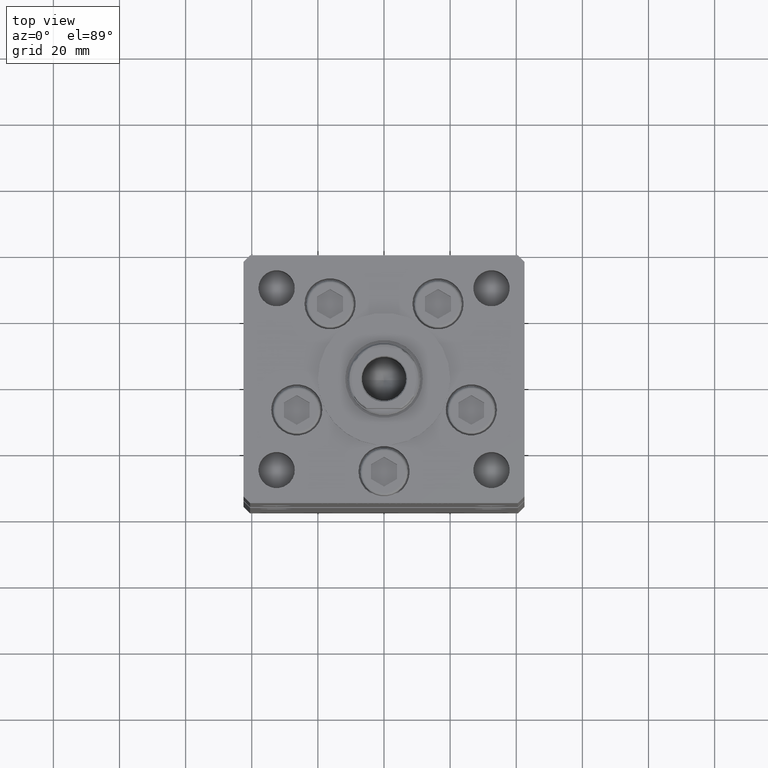
[diagram: clean part render]
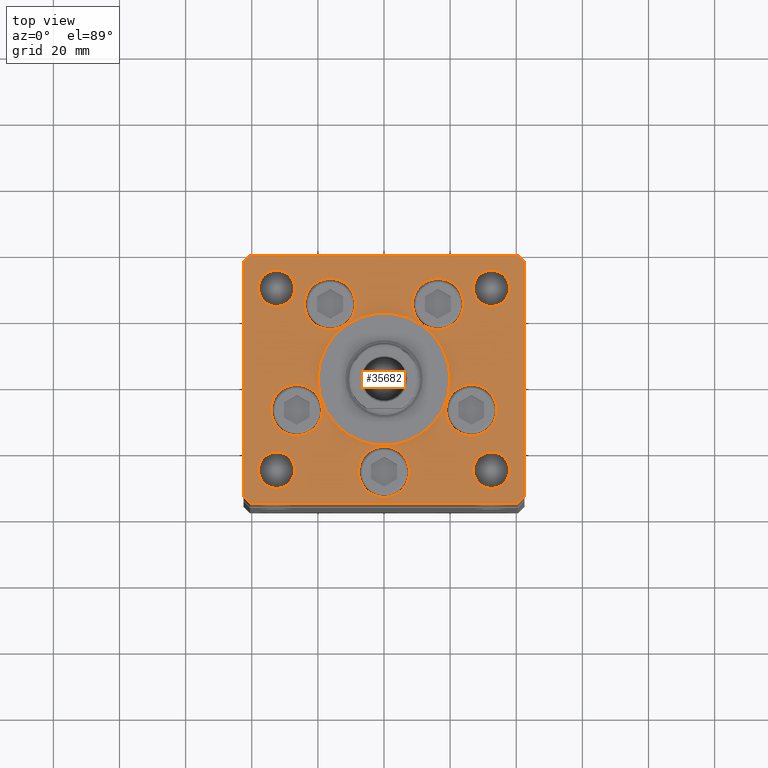
[diagram: same view with one face highlighted and labeled with its STEP entity id]
A machine part, top view. The second image highlights one B-rep face of the part: STEP entity #35682.
In plain terms, the highlighted planar face has unit normal (0, 0, 1).
Its self-contained STEP definition (entity closure, byte-faithful):
#1343 = CARTESIAN_POINT ( 'NONE',  ( -38.00000000000000000, -27.50000000000000355, 0.000000000000000000 ) ) ;
#1597 = CARTESIAN_POINT ( 'NONE',  ( 42.50000000000001421, 35.50000000000002132, 0.000000000000000000 ) ) ;
#1901 = FACE_BOUND ( 'NONE', #13152, .T. ) ;
#2140 = EDGE_CURVE ( 'NONE', #8667, #50473, #35944, .T. ) ;
#2159 = FACE_BOUND ( 'NONE', #14799, .T. ) ;
#2946 = VERTEX_POINT ( 'NONE', #18551 ) ;
#2965 = CARTESIAN_POINT ( 'NONE',  ( 32.50000000000000000, 27.49999999999999645, 0.000000000000000000 ) ) ;
#3022 = ORIENTED_EDGE ( 'NONE', *, *, #33646, .F. ) ;
#3031 = CIRCLE ( 'NONE', #21913, 5.499999999999998224 ) ;
#3111 = DIRECTION ( 'NONE',  ( 1.000000000000000000, 0.000000000000000000, 0.000000000000000000 ) ) ;
#3148 = DIRECTION ( 'NONE',  ( -1.000000000000000000, 0.000000000000000000, 0.000000000000000000 ) ) ;
#3188 = EDGE_CURVE ( 'NONE', #50121, #42399, #32314, .T. ) ;
#3564 = DIRECTION ( 'NONE',  ( -1.000000000000000000, 0.000000000000000000, 0.000000000000000000 ) ) ;
#3599 = ORIENTED_EDGE ( 'NONE', *, *, #17933, .T. ) ;
#3648 = EDGE_CURVE ( 'NONE', #4638, #20442, #47733, .T. ) ;
#4004 = VERTEX_POINT ( 'NONE', #7210 ) ;
#4372 = DIRECTION ( 'NONE',  ( 1.000000000000000000, 0.000000000000000000, 0.000000000000000000 ) ) ;
#4407 = DIRECTION ( 'NONE',  ( 1.000000000000000000, 1.370645709413773283E-15, 0.000000000000000000 ) ) ;
#4638 = VERTEX_POINT ( 'NONE', #24545 ) ;
#5094 = DIRECTION ( 'NONE',  ( 0.000000000000000000, 0.000000000000000000, 1.000000000000000000 ) ) ;
#5350 = VECTOR ( 'NONE', #5554, 1000.000000000000000 ) ;
#5554 = DIRECTION ( 'NONE',  ( -1.000000000000000000, -4.283267841918041508E-16, 0.000000000000000000 ) ) ;
#5619 = DIRECTION ( 'NONE',  ( -0.7071067811865524577, 0.7071067811865426878, 0.000000000000000000 ) ) ;
#5828 = AXIS2_PLACEMENT_3D ( 'NONE', #29367, #50270, #34175 ) ;
#5922 = ORIENTED_EDGE ( 'NONE', *, *, #28364, .T. ) ;
#6088 = CARTESIAN_POINT ( 'NONE',  ( 40.50000000000000711, 37.50000000000000711, 0.000000000000000000 ) ) ;
#6465 = DIRECTION ( 'NONE',  ( 1.000000000000000000, 0.000000000000000000, 0.000000000000000000 ) ) ;
#6713 = AXIS2_PLACEMENT_3D ( 'NONE', #11628, #36337, #3564 ) ;
#6719 = CIRCLE ( 'NONE', #35879, 7.750000000000000000 ) ;
#6830 = CIRCLE ( 'NONE', #6713, 5.499999999999998224 ) ;
#7084 = DIRECTION ( 'NONE',  ( 0.000000000000000000, 0.000000000000000000, 1.000000000000000000 ) ) ;
#7127 = ORIENTED_EDGE ( 'NONE', *, *, #45751, .T. ) ;
#7210 = CARTESIAN_POINT ( 'NONE',  ( -40.50000000000000711, -37.50000000000003553, 0.000000000000000000 ) ) ;
#7219 = CIRCLE ( 'NONE', #35526, 5.499999999999998224 ) ;
#7682 = AXIS2_PLACEMENT_3D ( 'NONE', #26884, #50519, #43251 ) ;
#8264 = AXIS2_PLACEMENT_3D ( 'NONE', #18254, #22552, #14218 ) ;
#8389 = VECTOR ( 'NONE', #26645, 1000.000000000000000 ) ;
#8667 = VERTEX_POINT ( 'NONE', #42261 ) ;
#8799 = DIRECTION ( 'NONE',  ( 0.7071067811865474617, 0.7071067811865474617, 0.000000000000000000 ) ) ;
#8812 = EDGE_CURVE ( 'NONE', #41532, #35198, #39349, .T. ) ;
#8957 = DIRECTION ( 'NONE',  ( 1.000000000000000000, 0.000000000000000000, 0.000000000000000000 ) ) ;
#9152 = AXIS2_PLACEMENT_3D ( 'NONE', #26432, #27233, #51376 ) ;
#9259 = EDGE_LOOP ( 'NONE', ( #27179, #47994, #52409, #25388, #5922, #3599, #7127, #36274 ) ) ;
#9460 = CARTESIAN_POINT ( 'NONE',  ( 0.000000000000000000, 0.000000000000000000, 0.000000000000000000 ) ) ;
#10094 = EDGE_LOOP ( 'NONE', ( #33710, #28941 ) ) ;
#10648 = DIRECTION ( 'NONE',  ( 0.000000000000000000, 0.000000000000000000, 1.000000000000000000 ) ) ;
#10863 = CIRCLE ( 'NONE', #9152, 7.750000000000000000 ) ;
#10956 = DIRECTION ( 'NONE',  ( -0.000000000000000000, -0.000000000000000000, -1.000000000000000000 ) ) ;
#11159 = EDGE_LOOP ( 'NONE', ( #23056, #49198 ) ) ;
#11374 = AXIS2_PLACEMENT_3D ( 'NONE', #23239, #48182, #32360 ) ;
#11433 = EDGE_CURVE ( 'NONE', #51940, #49529, #14602, .T. ) ;
#11438 = ORIENTED_EDGE ( 'NONE', *, *, #18230, .F. ) ;
#11628 = CARTESIAN_POINT ( 'NONE',  ( 32.50000000000000000, -27.50000000000000355, 0.000000000000000000 ) ) ;
#11714 = CARTESIAN_POINT ( 'NONE',  ( -16.32291334290544071, 22.74999999999999289, 0.000000000000000000 ) ) ;
#11767 = VERTEX_POINT ( 'NONE', #6088 ) ;
#11983 = AXIS2_PLACEMENT_3D ( 'NONE', #52628, #19093, #31983 ) ;
#12486 = VERTEX_POINT ( 'NONE', #47303 ) ;
#12725 = DIRECTION ( 'NONE',  ( 0.000000000000000000, 0.000000000000000000, 1.000000000000000000 ) ) ;
#13152 = EDGE_LOOP ( 'NONE', ( #39221, #52493 ) ) ;
#13287 = VECTOR ( 'NONE', #5619, 1000.000000000000000 ) ;
#13483 = VERTEX_POINT ( 'NONE', #39208 ) ;
#13544 = VERTEX_POINT ( 'NONE', #19334 ) ;
#13749 = DIRECTION ( 'NONE',  ( 1.000000000000000000, 0.000000000000000000, 0.000000000000000000 ) ) ;
#13752 = CARTESIAN_POINT ( 'NONE',  ( 0.000000000000000000, -28.00000000000000000, 0.000000000000000000 ) ) ;
#13825 = CARTESIAN_POINT ( 'NONE',  ( -27.00000000000000355, -27.50000000000000355, 0.000000000000000000 ) ) ;
#14218 = DIRECTION ( 'NONE',  ( -1.000000000000000000, 0.000000000000000000, 0.000000000000000000 ) ) ;
#14259 = FACE_BOUND ( 'NONE', #10094, .T. ) ;
#14312 = AXIS2_PLACEMENT_3D ( 'NONE', #25515, #5094, #33314 ) ;
#14406 = ORIENTED_EDGE ( 'NONE', *, *, #8812, .F. ) ;
#14602 = CIRCLE ( 'NONE', #45499, 5.499999999999998224 ) ;
#14799 = EDGE_LOOP ( 'NONE', ( #3022, #27879 ) ) ;
#15152 = CARTESIAN_POINT ( 'NONE',  ( 16.32291334290544071, 22.74999999999999289, 0.000000000000000000 ) ) ;
#15310 = DIRECTION ( 'NONE',  ( 1.000000000000000000, 0.000000000000000000, 0.000000000000000000 ) ) ;
#15522 = DIRECTION ( 'NONE',  ( 9.773090005503134168E-17, -1.000000000000000000, 0.000000000000000000 ) ) ;
#15998 = ORIENTED_EDGE ( 'NONE', *, *, #38241, .F. ) ;
#16150 = CARTESIAN_POINT ( 'NONE',  ( 40.50000000000000711, 37.50000000000000711, 0.000000000000000000 ) ) ;
#16293 = DIRECTION ( 'NONE',  ( 0.000000000000000000, 0.000000000000000000, 1.000000000000000000 ) ) ;
#16792 = EDGE_CURVE ( 'NONE', #29213, #25379, #43110, .T. ) ;
#16813 = CARTESIAN_POINT ( 'NONE',  ( -16.32291334290544071, 22.74999999999999289, 0.000000000000000000 ) ) ;
#17812 = AXIS2_PLACEMENT_3D ( 'NONE', #9460, #42211, #13749 ) ;
#17933 = EDGE_CURVE ( 'NONE', #11767, #13544, #24748, .T. ) ;
#18230 = EDGE_CURVE ( 'NONE', #42399, #50121, #29455, .T. ) ;
#18254 = CARTESIAN_POINT ( 'NONE',  ( 32.50000000000000000, -27.50000000000000355, 0.000000000000000000 ) ) ;
#18312 = LINE ( 'NONE', #30680, #8389 ) ;
#18350 = ORIENTED_EDGE ( 'NONE', *, *, #11433, .F. ) ;
#18551 = CARTESIAN_POINT ( 'NONE',  ( -27.00000000000000355, 27.50000000000000711, 0.000000000000000000 ) ) ;
#18568 = VECTOR ( 'NONE', #15522, 1000.000000000000000 ) ;
#18984 = DIRECTION ( 'NONE',  ( -1.000000000000000000, 0.000000000000000000, 0.000000000000000000 ) ) ;
#19031 = EDGE_LOOP ( 'NONE', ( #15998, #45178 ) ) ;
#19093 = DIRECTION ( 'NONE',  ( 0.000000000000000000, 0.000000000000000000, 1.000000000000000000 ) ) ;
#19303 = CIRCLE ( 'NONE', #52755, 7.750000000000000000 ) ;
#19334 = CARTESIAN_POINT ( 'NONE',  ( -40.50000000000000000, 37.49999999999997158, 0.000000000000000000 ) ) ;
#19343 = AXIS2_PLACEMENT_3D ( 'NONE', #28103, #10648, #3111 ) ;
#19638 = DIRECTION ( 'NONE',  ( 1.000000000000000000, 0.000000000000000000, 0.000000000000000000 ) ) ;
#20016 = CARTESIAN_POINT ( 'NONE',  ( -18.64865316429777664, -9.333333333333330373, 0.000000000000000000 ) ) ;
#20442 = VERTEX_POINT ( 'NONE', #39399 ) ;
#20802 = CARTESIAN_POINT ( 'NONE',  ( -40.50000000000000711, -37.50000000000003553, 0.000000000000000000 ) ) ;
#20857 = DIRECTION ( 'NONE',  ( 1.000000000000000000, 0.000000000000000000, 0.000000000000000000 ) ) ;
#21042 = CIRCLE ( 'NONE', #34747, 7.750000000000000000 ) ;
#21913 = AXIS2_PLACEMENT_3D ( 'NONE', #2965, #40035, #19638 ) ;
#22025 = LINE ( 'NONE', #1597, #13287 ) ;
#22097 = EDGE_CURVE ( 'NONE', #13483, #2946, #34632, .T. ) ;
#22334 = FACE_BOUND ( 'NONE', #19031, .T. ) ;
#22389 = EDGE_CURVE ( 'NONE', #2946, #13483, #7219, .T. ) ;
#22552 = DIRECTION ( 'NONE',  ( -0.000000000000000000, -0.000000000000000000, -1.000000000000000000 ) ) ;
#22671 = CIRCLE ( 'NONE', #26084, 7.750000000000000000 ) ;
#22758 = CARTESIAN_POINT ( 'NONE',  ( 42.50000000000000711, -35.49999999999992895, 0.000000000000000000 ) ) ;
#23000 = VERTEX_POINT ( 'NONE', #29342 ) ;
#23056 = ORIENTED_EDGE ( 'NONE', *, *, #30057, .F. ) ;
#23194 = EDGE_CURVE ( 'NONE', #38711, #50458, #29218, .T. ) ;
#23239 = CARTESIAN_POINT ( 'NONE',  ( -32.50000000000000000, -27.50000000000000355, 0.000000000000000000 ) ) ;
#24545 = CARTESIAN_POINT ( 'NONE',  ( -7.750000000000000000, -28.00000000000000000, 0.000000000000000000 ) ) ;
#24748 = LINE ( 'NONE', #16150, #5350 ) ;
#25268 = EDGE_CURVE ( 'NONE', #12486, #52551, #19303, .T. ) ;
#25379 = VERTEX_POINT ( 'NONE', #13825 ) ;
#25388 = ORIENTED_EDGE ( 'NONE', *, *, #35615, .T. ) ;
#25515 = CARTESIAN_POINT ( 'NONE',  ( 16.32291334290544071, 22.74999999999999289, 0.000000000000000000 ) ) ;
#25613 = CARTESIAN_POINT ( 'NONE',  ( 26.39865316429777664, -9.333333333333330373, 0.000000000000000000 ) ) ;
#25650 = LINE ( 'NONE', #50844, #32264 ) ;
#25820 = VERTEX_POINT ( 'NONE', #28240 ) ;
#26084 = AXIS2_PLACEMENT_3D ( 'NONE', #25613, #12725, #8957 ) ;
#26432 = CARTESIAN_POINT ( 'NONE',  ( -26.39865316429777664, -9.333333333333330373, 0.000000000000000000 ) ) ;
#26457 = EDGE_CURVE ( 'NONE', #25820, #23000, #22671, .T. ) ;
#26645 = DIRECTION ( 'NONE',  ( 9.773090005503145261E-17, 1.000000000000000000, 0.000000000000000000 ) ) ;
#26884 = CARTESIAN_POINT ( 'NONE',  ( 26.39865316429777664, -9.333333333333330373, 0.000000000000000000 ) ) ;
#26943 = ORIENTED_EDGE ( 'NONE', *, *, #51839, .F. ) ;
#27179 = ORIENTED_EDGE ( 'NONE', *, *, #44783, .T. ) ;
#27233 = DIRECTION ( 'NONE',  ( 0.000000000000000000, 0.000000000000000000, 1.000000000000000000 ) ) ;
#27743 = CARTESIAN_POINT ( 'NONE',  ( 0.000000000000000000, -6.938893903907228378E-15, 0.000000000000000000 ) ) ;
#27879 = ORIENTED_EDGE ( 'NONE', *, *, #43548, .F. ) ;
#27887 = VERTEX_POINT ( 'NONE', #41180 ) ;
#28095 = AXIS2_PLACEMENT_3D ( 'NONE', #28286, #28554, #4372 ) ;
#28103 = CARTESIAN_POINT ( 'NONE',  ( -26.39865316429777664, -9.333333333333330373, 0.000000000000000000 ) ) ;
#28240 = CARTESIAN_POINT ( 'NONE',  ( 18.64865316429777664, -9.333333333333328596, 0.000000000000000000 ) ) ;
#28286 = CARTESIAN_POINT ( 'NONE',  ( 0.000000000000000000, -28.00000000000000000, 0.000000000000000000 ) ) ;
#28364 = EDGE_CURVE ( 'NONE', #48745, #11767, #22025, .T. ) ;
#28461 = EDGE_LOOP ( 'NONE', ( #44374, #39571 ) ) ;
#28554 = DIRECTION ( 'NONE',  ( 0.000000000000000000, 0.000000000000000000, 1.000000000000000000 ) ) ;
#28714 = EDGE_LOOP ( 'NONE', ( #35606, #48092 ) ) ;
#28868 = CIRCLE ( 'NONE', #8264, 5.499999999999998224 ) ;
#28941 = ORIENTED_EDGE ( 'NONE', *, *, #41931, .T. ) ;
#29059 = VECTOR ( 'NONE', #4407, 1000.000000000000000 ) ;
#29100 = CARTESIAN_POINT ( 'NONE',  ( 27.00000000000000355, 27.49999999999999645, 0.000000000000000000 ) ) ;
#29213 = VERTEX_POINT ( 'NONE', #1343 ) ;
#29218 = LINE ( 'NONE', #45576, #34672 ) ;
#29342 = CARTESIAN_POINT ( 'NONE',  ( 34.14865316429777664, -9.333333333333330373, 0.000000000000000000 ) ) ;
#29367 = CARTESIAN_POINT ( 'NONE',  ( 0.000000000000000000, -6.938893903907228378E-15, 0.000000000000000000 ) ) ;
#29455 = CIRCLE ( 'NONE', #36297, 7.750000000000000000 ) ;
#30057 = EDGE_CURVE ( 'NONE', #20442, #4638, #21042, .T. ) ;
#30177 = EDGE_CURVE ( 'NONE', #49529, #51940, #3031, .T. ) ;
#30393 = FACE_BOUND ( 'NONE', #31846, .T. ) ;
#30622 = CARTESIAN_POINT ( 'NONE',  ( 8.572913342905442491, 22.74999999999999289, 0.000000000000000000 ) ) ;
#30680 = CARTESIAN_POINT ( 'NONE',  ( 42.50000000000000711, -35.49999999999992895, 0.000000000000000000 ) ) ;
#30858 = CIRCLE ( 'NONE', #7682, 7.750000000000000000 ) ;
#31191 = FACE_BOUND ( 'NONE', #28714, .T. ) ;
#31426 = CARTESIAN_POINT ( 'NONE',  ( 32.50000000000000000, 27.49999999999999645, 0.000000000000000000 ) ) ;
#31846 = EDGE_LOOP ( 'NONE', ( #46660, #18350 ) ) ;
#31983 = DIRECTION ( 'NONE',  ( 1.000000000000000000, 0.000000000000000000, 0.000000000000000000 ) ) ;
#32106 = CARTESIAN_POINT ( 'NONE',  ( -20.00000000000000000, -6.938893903907228378E-15, 0.000000000000000000 ) ) ;
#32264 = VECTOR ( 'NONE', #38509, 1000.000000000000000 ) ;
#32314 = CIRCLE ( 'NONE', #14312, 7.750000000000000000 ) ;
#32360 = DIRECTION ( 'NONE',  ( 1.000000000000000000, 0.000000000000000000, 0.000000000000000000 ) ) ;
#32606 = DIRECTION ( 'NONE',  ( 1.000000000000000000, 0.000000000000000000, 0.000000000000000000 ) ) ;
#32622 = LINE ( 'NONE', #20802, #29059 ) ;
#32668 = DIRECTION ( 'NONE',  ( 0.000000000000000000, 0.000000000000000000, 1.000000000000000000 ) ) ;
#32679 = EDGE_CURVE ( 'NONE', #50131, #42134, #28868, .T. ) ;
#33046 = CARTESIAN_POINT ( 'NONE',  ( 24.07291334290544071, 22.74999999999999289, 0.000000000000000000 ) ) ;
#33314 = DIRECTION ( 'NONE',  ( 1.000000000000000000, 0.000000000000000000, 0.000000000000000000 ) ) ;
#33575 = DIRECTION ( 'NONE',  ( 0.000000000000000000, 0.000000000000000000, 1.000000000000000000 ) ) ;
#33646 = EDGE_CURVE ( 'NONE', #44957, #27887, #10863, .T. ) ;
#33710 = ORIENTED_EDGE ( 'NONE', *, *, #32679, .T. ) ;
#34017 = CARTESIAN_POINT ( 'NONE',  ( -42.50000000000000000, -35.50000000000004263, 0.000000000000000000 ) ) ;
#34163 = FACE_BOUND ( 'NONE', #38373, .T. ) ;
#34175 = DIRECTION ( 'NONE',  ( 1.000000000000000000, 0.000000000000000000, 0.000000000000000000 ) ) ;
#34632 = CIRCLE ( 'NONE', #40664, 5.499999999999998224 ) ;
#34672 = VECTOR ( 'NONE', #8799, 1000.000000000000114 ) ;
#34747 = AXIS2_PLACEMENT_3D ( 'NONE', #13752, #38709, #6465 ) ;
#34770 = CARTESIAN_POINT ( 'NONE',  ( -8.572913342905440715, 22.74999999999999289, 0.000000000000000000 ) ) ;
#35135 = CIRCLE ( 'NONE', #11983, 5.499999999999998224 ) ;
#35198 = VERTEX_POINT ( 'NONE', #45062 ) ;
#35211 = PLANE ( 'NONE',  #17812 ) ;
#35526 = AXIS2_PLACEMENT_3D ( 'NONE', #48521, #10956, #3148 ) ;
#35606 = ORIENTED_EDGE ( 'NONE', *, *, #42216, .F. ) ;
#35615 = EDGE_CURVE ( 'NONE', #50458, #48745, #18312, .T. ) ;
#35682 = ADVANCED_FACE ( 'NONE', ( #42463, #22334, #34163, #31191, #38961, #2159, #39233, #30393, #1901, #50524, #14259 ), #35211, .T. ) ;
#35853 = CARTESIAN_POINT ( 'NONE',  ( 40.50000000000001421, -37.49999999999992184, 0.000000000000000000 ) ) ;
#35879 = AXIS2_PLACEMENT_3D ( 'NONE', #16813, #16293, #20857 ) ;
#35944 = LINE ( 'NONE', #52289, #18568 ) ;
#36274 = ORIENTED_EDGE ( 'NONE', *, *, #2140, .T. ) ;
#36297 = AXIS2_PLACEMENT_3D ( 'NONE', #15152, #7084, #32606 ) ;
#36337 = DIRECTION ( 'NONE',  ( -0.000000000000000000, -0.000000000000000000, -1.000000000000000000 ) ) ;
#38241 = EDGE_CURVE ( 'NONE', #52551, #12486, #6719, .T. ) ;
#38373 = EDGE_LOOP ( 'NONE', ( #11438, #49807 ) ) ;
#38509 = DIRECTION ( 'NONE',  ( -0.7071067811865536790, -0.7071067811865414665, 0.000000000000000000 ) ) ;
#38709 = DIRECTION ( 'NONE',  ( 0.000000000000000000, 0.000000000000000000, 1.000000000000000000 ) ) ;
#38711 = VERTEX_POINT ( 'NONE', #35853 ) ;
#38751 = EDGE_CURVE ( 'NONE', #4004, #38711, #32622, .T. ) ;
#38961 = FACE_BOUND ( 'NONE', #11159, .T. ) ;
#39119 = CARTESIAN_POINT ( 'NONE',  ( 38.00000000000000000, 27.49999999999999645, 0.000000000000000000 ) ) ;
#39208 = CARTESIAN_POINT ( 'NONE',  ( -38.00000000000000000, 27.50000000000000711, 0.000000000000000000 ) ) ;
#39221 = ORIENTED_EDGE ( 'NONE', *, *, #42278, .F. ) ;
#39233 = FACE_BOUND ( 'NONE', #28461, .T. ) ;
#39349 = CIRCLE ( 'NONE', #41048, 20.00000000000000000 ) ;
#39399 = CARTESIAN_POINT ( 'NONE',  ( 7.750000000000000000, -28.00000000000000000, 0.000000000000000000 ) ) ;
#39571 = ORIENTED_EDGE ( 'NONE', *, *, #22097, .T. ) ;
#39962 = VECTOR ( 'NONE', #50643, 1000.000000000000000 ) ;
#40035 = DIRECTION ( 'NONE',  ( 0.000000000000000000, 0.000000000000000000, 1.000000000000000000 ) ) ;
#40664 = AXIS2_PLACEMENT_3D ( 'NONE', #43685, #51991, #18984 ) ;
#40751 = LINE ( 'NONE', #34017, #39962 ) ;
#41021 = EDGE_LOOP ( 'NONE', ( #14406, #26943 ) ) ;
#41048 = AXIS2_PLACEMENT_3D ( 'NONE', #27743, #33575, #45640 ) ;
#41180 = CARTESIAN_POINT ( 'NONE',  ( -34.14865316429777664, -9.333333333333328596, 0.000000000000000000 ) ) ;
#41532 = VERTEX_POINT ( 'NONE', #32106 ) ;
#41931 = EDGE_CURVE ( 'NONE', #42134, #50131, #6830, .T. ) ;
#42134 = VERTEX_POINT ( 'NONE', #42207 ) ;
#42207 = CARTESIAN_POINT ( 'NONE',  ( 27.00000000000000355, -27.50000000000000355, 0.000000000000000000 ) ) ;
#42211 = DIRECTION ( 'NONE',  ( -0.000000000000000000, 0.000000000000000000, 1.000000000000000000 ) ) ;
#42216 = EDGE_CURVE ( 'NONE', #23000, #25820, #30858, .T. ) ;
#42261 = CARTESIAN_POINT ( 'NONE',  ( -42.50000000000000711, 35.50000000000000000, 0.000000000000000000 ) ) ;
#42278 = EDGE_CURVE ( 'NONE', #25379, #29213, #35135, .T. ) ;
#42399 = VERTEX_POINT ( 'NONE', #33046 ) ;
#42423 = CARTESIAN_POINT ( 'NONE',  ( 38.00000000000000000, -27.50000000000000355, 0.000000000000000000 ) ) ;
#42463 = FACE_BOUND ( 'NONE', #41021, .T. ) ;
#42482 = CIRCLE ( 'NONE', #19343, 7.750000000000000000 ) ;
#43110 = CIRCLE ( 'NONE', #11374, 5.499999999999998224 ) ;
#43251 = DIRECTION ( 'NONE',  ( 1.000000000000000000, 0.000000000000000000, 0.000000000000000000 ) ) ;
#43548 = EDGE_CURVE ( 'NONE', #27887, #44957, #42482, .T. ) ;
#43685 = CARTESIAN_POINT ( 'NONE',  ( -32.50000000000000000, 27.50000000000000711, 0.000000000000000000 ) ) ;
#44219 = CARTESIAN_POINT ( 'NONE',  ( -42.50000000000000000, -35.50000000000004263, 0.000000000000000000 ) ) ;
#44374 = ORIENTED_EDGE ( 'NONE', *, *, #22389, .T. ) ;
#44783 = EDGE_CURVE ( 'NONE', #50473, #4004, #40751, .T. ) ;
#44957 = VERTEX_POINT ( 'NONE', #20016 ) ;
#45062 = CARTESIAN_POINT ( 'NONE',  ( 20.00000000000000000, -4.489600305612522259E-15, 0.000000000000000000 ) ) ;
#45178 = ORIENTED_EDGE ( 'NONE', *, *, #25268, .F. ) ;
#45298 = CIRCLE ( 'NONE', #5828, 20.00000000000000000 ) ;
#45499 = AXIS2_PLACEMENT_3D ( 'NONE', #31426, #51801, #15310 ) ;
#45576 = CARTESIAN_POINT ( 'NONE',  ( 40.50000000000001421, -37.49999999999992184, 0.000000000000000000 ) ) ;
#45640 = DIRECTION ( 'NONE',  ( 1.000000000000000000, 0.000000000000000000, 0.000000000000000000 ) ) ;
#45751 = EDGE_CURVE ( 'NONE', #13544, #8667, #25650, .T. ) ;
#46660 = ORIENTED_EDGE ( 'NONE', *, *, #30177, .F. ) ;
#47303 = CARTESIAN_POINT ( 'NONE',  ( -24.07291334290544071, 22.74999999999999289, 0.000000000000000000 ) ) ;
#47733 = CIRCLE ( 'NONE', #28095, 7.750000000000000000 ) ;
#47994 = ORIENTED_EDGE ( 'NONE', *, *, #38751, .T. ) ;
#48092 = ORIENTED_EDGE ( 'NONE', *, *, #26457, .F. ) ;
#48128 = CARTESIAN_POINT ( 'NONE',  ( 42.50000000000001421, 35.50000000000002132, 0.000000000000000000 ) ) ;
#48182 = DIRECTION ( 'NONE',  ( 0.000000000000000000, 0.000000000000000000, 1.000000000000000000 ) ) ;
#48521 = CARTESIAN_POINT ( 'NONE',  ( -32.50000000000000000, 27.50000000000000711, 0.000000000000000000 ) ) ;
#48745 = VERTEX_POINT ( 'NONE', #48128 ) ;
#49029 = DIRECTION ( 'NONE',  ( 1.000000000000000000, 0.000000000000000000, 0.000000000000000000 ) ) ;
#49198 = ORIENTED_EDGE ( 'NONE', *, *, #3648, .F. ) ;
#49529 = VERTEX_POINT ( 'NONE', #39119 ) ;
#49807 = ORIENTED_EDGE ( 'NONE', *, *, #3188, .F. ) ;
#50121 = VERTEX_POINT ( 'NONE', #30622 ) ;
#50131 = VERTEX_POINT ( 'NONE', #42423 ) ;
#50270 = DIRECTION ( 'NONE',  ( 0.000000000000000000, 0.000000000000000000, 1.000000000000000000 ) ) ;
#50458 = VERTEX_POINT ( 'NONE', #22758 ) ;
#50473 = VERTEX_POINT ( 'NONE', #44219 ) ;
#50519 = DIRECTION ( 'NONE',  ( 0.000000000000000000, 0.000000000000000000, 1.000000000000000000 ) ) ;
#50524 = FACE_OUTER_BOUND ( 'NONE', #9259, .T. ) ;
#50643 = DIRECTION ( 'NONE',  ( 0.7071067811865487940, -0.7071067811865463515, 0.000000000000000000 ) ) ;
#50844 = CARTESIAN_POINT ( 'NONE',  ( -40.50000000000000000, 37.49999999999997158, 0.000000000000000000 ) ) ;
#51376 = DIRECTION ( 'NONE',  ( 1.000000000000000000, 0.000000000000000000, 0.000000000000000000 ) ) ;
#51801 = DIRECTION ( 'NONE',  ( 0.000000000000000000, 0.000000000000000000, 1.000000000000000000 ) ) ;
#51839 = EDGE_CURVE ( 'NONE', #35198, #41532, #45298, .T. ) ;
#51940 = VERTEX_POINT ( 'NONE', #29100 ) ;
#51991 = DIRECTION ( 'NONE',  ( -0.000000000000000000, -0.000000000000000000, -1.000000000000000000 ) ) ;
#52289 = CARTESIAN_POINT ( 'NONE',  ( -42.50000000000000711, 35.50000000000000000, 0.000000000000000000 ) ) ;
#52409 = ORIENTED_EDGE ( 'NONE', *, *, #23194, .T. ) ;
#52493 = ORIENTED_EDGE ( 'NONE', *, *, #16792, .F. ) ;
#52551 = VERTEX_POINT ( 'NONE', #34770 ) ;
#52628 = CARTESIAN_POINT ( 'NONE',  ( -32.50000000000000000, -27.50000000000000355, 0.000000000000000000 ) ) ;
#52755 = AXIS2_PLACEMENT_3D ( 'NONE', #11714, #32668, #49029 ) ;